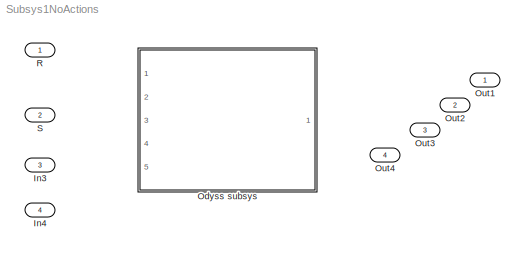
MODEL Subsys1NoActions
KIND model
BLOCK [Inport] In3
  IconDisplay = Port number
  Port = 3
  SID = 3
  SampleTime = 1
BLOCK [Inport] In4
  IconDisplay = Port number
  Port = 4
  SID = 4
  SampleTime = 1
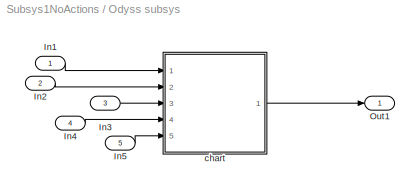
BLOCK [SubSystem] Odyss subsys
  Ports = [5, 1]
  RequestExecContextInheritance = off
  SID = 5
  Variant = off
BLOCK [Inport] Odyss subsys/In1
  IconDisplay = Port number
  OutDataTypeStr = boolean
  SID = 22
BLOCK [Inport] Odyss subsys/In2
  IconDisplay = Port number
  OutDataTypeStr = boolean
  Port = 2
  SID = 23
BLOCK [Inport] Odyss subsys/In3
  IconDisplay = Port number
  OutDataTypeStr = boolean
  Port = 3
  SID = 24
BLOCK [Inport] Odyss subsys/In4
  IconDisplay = Port number
  OutDataTypeStr = boolean
  Port = 4
  SID = 25
BLOCK [Inport] Odyss subsys/In5
  IconDisplay = Port number
  OutDataTypeStr = boolean
  Port = 5
  SID = 26
BLOCK [Outport] Odyss subsys/Out1
  IconDisplay = Port number
  SID = 21
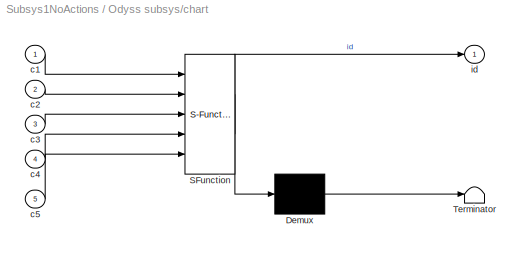
BLOCK [SubSystem] Odyss subsys/chart
  ErrorFcn = Stateflow.Translate.translate
  PermitHierarchicalResolution = ExplicitOnly
  Ports = [5, 1]
  RequestExecContextInheritance = off
  SFBlockType = Chart
  SID = 12
  TreatAsAtomicUnit = on
  Variant = off
BLOCK [Demux] Odyss subsys/chart/ Demux 
  Outputs = 1
  Ports = [1, 1]
  SID = 12::18
BLOCK [S-Function] Odyss subsys/chart/ SFunction 
  EnableBusSupport = on
  FunctionName = sf_sfun
  PortCounts = [5 2]
  Ports = [5, 2]
  SFcnIsStateOwnerBlock = off
  SFunctionDeploymentMode = off
  SID = 12::17
  Tag = Stateflow S-Function Subsys1NoActions 2
BLOCK [Terminator] Odyss subsys/chart/ Terminator 
  SID = 12::19
BLOCK [Inport] Odyss subsys/chart/c1
  IconDisplay = Port number
  SID = 12::20
BLOCK [Inport] Odyss subsys/chart/c2
  IconDisplay = Port number
  Port = 2
  SID = 12::21
BLOCK [Inport] Odyss subsys/chart/c3
  IconDisplay = Port number
  Port = 3
  SID = 12::22
BLOCK [Inport] Odyss subsys/chart/c4
  IconDisplay = Port number
  Port = 4
  SID = 12::23
BLOCK [Inport] Odyss subsys/chart/c5
  IconDisplay = Port number
  Port = 5
  SID = 12::24
BLOCK [Outport] Odyss subsys/chart/id
  IconDisplay = Port number
  SID = 12::25
BLOCK [Outport] Out1
  IconDisplay = Port number
  SID = 17
BLOCK [Outport] Out2
  IconDisplay = Port number
  Port = 2
  SID = 18
BLOCK [Outport] Out3
  IconDisplay = Port number
  Port = 3
  SID = 19
BLOCK [Outport] Out4
  IconDisplay = Port number
  Port = 4
  SID = 20
BLOCK [Inport] R
  IconDisplay = Port number
  SID = 1
  SampleTime = 1
BLOCK [Inport] S
  IconDisplay = Port number
  Port = 2
  SID = 2
  SampleTime = 1
LINE Odyss subsys/In1:1 -> Odyss subsys/chart:1
LINE Odyss subsys/In2:1 -> Odyss subsys/chart:2
LINE Odyss subsys/In3:1 -> Odyss subsys/chart:3
LINE Odyss subsys/In4:1 -> Odyss subsys/chart:4
LINE Odyss subsys/In5:1 -> Odyss subsys/chart:5
LINE Odyss subsys/chart/ Demux :1 -> Odyss subsys/chart/ Terminator :1
LINE Odyss subsys/chart/ SFunction :1 -> Odyss subsys/chart/ Demux :1
LINE Odyss subsys/chart/ SFunction :2 -> Odyss subsys/chart/id:1
LINE Odyss subsys/chart/c1:1 -> Odyss subsys/chart/ SFunction :1
LINE Odyss subsys/chart/c2:1 -> Odyss subsys/chart/ SFunction :2
LINE Odyss subsys/chart/c3:1 -> Odyss subsys/chart/ SFunction :3
LINE Odyss subsys/chart/c4:1 -> Odyss subsys/chart/ SFunction :4
LINE Odyss subsys/chart/c5:1 -> Odyss subsys/chart/ SFunction :5
LINE Odyss subsys/chart:1 -> Odyss subsys/Out1:1
CHART Odyss subsys/chart states=12 transitions=12
  STATE_LABEL 'A'
  STATE_LABEL 'B'
  STATE_LABEL 'Aa/\\nen:id=1;'
  STATE_LABEL 'Ab/\\nen:id=2;'
  STATE_LABEL 'C'
  STATE_LABEL 'Ba/\\nen:id=3;'
  STATE_LABEL 'Bb/\\nen:id=4;'
  STATE_LABEL 'D'
  STATE_LABEL 'Ca/\\nen:id=5;'
  STATE_LABEL 'Cb/\\nen:id=6;'
  STATE_LABEL 'Da/\\nen:id=7;'
  STATE_LABEL 'Db/\\nen:id=8;'
